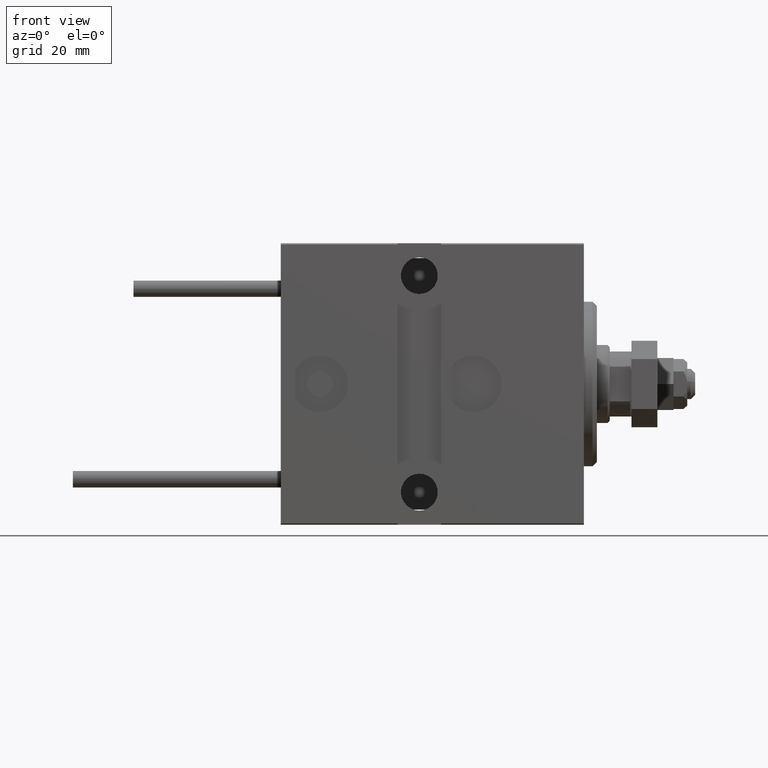
[diagram: clean part render]
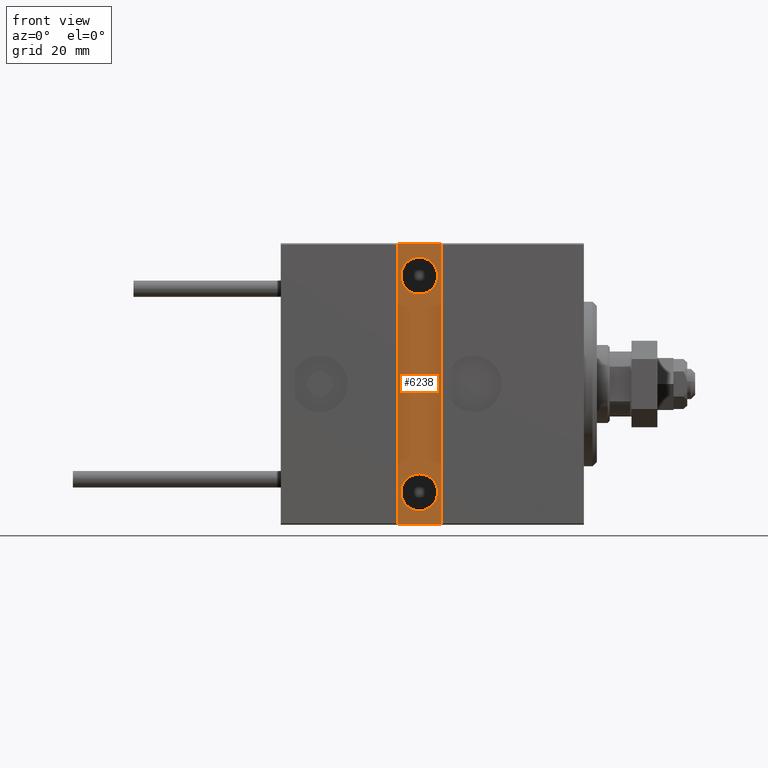
[diagram: same view with one face highlighted and labeled with its STEP entity id]
A machine part, front view. The second image highlights one B-rep face of the part: STEP entity #6238.
In plain terms, the highlighted planar face has unit normal (0, 1, 0).
Its self-contained STEP definition (entity closure, byte-faithful):
#205 = ORIENTED_EDGE ( 'NONE', *, *, #43063, .T. ) ;
#793 = EDGE_CURVE ( 'NONE', #45301, #20154, #11176, .T. ) ;
#1697 = EDGE_LOOP ( 'NONE', ( #13422, #31491, #46224, #20298 ) ) ;
#1749 = DIRECTION ( 'NONE',  ( 0.000000000000000000, 0.000000000000000000, -1.000000000000000000 ) ) ;
#1759 = CIRCLE ( 'NONE', #4196, 4.249999999999996447 ) ;
#1945 = DIRECTION ( 'NONE',  ( 0.000000000000000000, 0.000000000000000000, -1.000000000000000000 ) ) ;
#3084 = CARTESIAN_POINT ( 'NONE',  ( 43.00000000000000711, 20.49999999999999645, 32.49999999999995737 ) ) ;
#4196 = AXIS2_PLACEMENT_3D ( 'NONE', #20677, #35960, #5906 ) ;
#5667 = VECTOR ( 'NONE', #12074, 1000.000000000000000 ) ;
#5906 = DIRECTION ( 'NONE',  ( 0.000000000000000000, 0.000000000000000000, -1.000000000000000000 ) ) ;
#6238 = ADVANCED_FACE ( 'NONE', ( #14465, #25001, #21747 ), #13723, .F. ) ;
#7312 = CARTESIAN_POINT ( 'NONE',  ( 38.00000000000001421, 20.49999999999999645, 25.00000000000000000 ) ) ;
#7488 = EDGE_CURVE ( 'NONE', #22580, #39453, #39118, .T. ) ;
#7648 = VERTEX_POINT ( 'NONE', #42274 ) ;
#8048 = DIRECTION ( 'NONE',  ( 0.000000000000000000, -1.000000000000000000, 0.000000000000000000 ) ) ;
#9458 = CARTESIAN_POINT ( 'NONE',  ( 38.00000000000001421, 20.49999999999999645, -25.00000000000000000 ) ) ;
#9509 = DIRECTION ( 'NONE',  ( 0.000000000000000000, -1.000000000000000000, 0.000000000000000000 ) ) ;
#10315 = ORIENTED_EDGE ( 'NONE', *, *, #793, .T. ) ;
#10940 = EDGE_CURVE ( 'NONE', #20154, #45301, #1759, .T. ) ;
#11176 = CIRCLE ( 'NONE', #34397, 4.249999999999996447 ) ;
#12074 = DIRECTION ( 'NONE',  ( -1.000000000000000000, 0.000000000000000000, 0.000000000000000000 ) ) ;
#13422 = ORIENTED_EDGE ( 'NONE', *, *, #28496, .T. ) ;
#13723 = PLANE ( 'NONE',  #44840 ) ;
#14465 = FACE_BOUND ( 'NONE', #21715, .T. ) ;
#14694 = VECTOR ( 'NONE', #18638, 1000.000000000000000 ) ;
#15070 = DIRECTION ( 'NONE',  ( 0.000000000000000000, 0.000000000000000000, -1.000000000000000000 ) ) ;
#17751 = VERTEX_POINT ( 'NONE', #40695 ) ;
#18638 = DIRECTION ( 'NONE',  ( 1.000000000000000000, -0.000000000000000000, -0.000000000000000000 ) ) ;
#18782 = CIRCLE ( 'NONE', #46786, 4.249999999999996447 ) ;
#19249 = CARTESIAN_POINT ( 'NONE',  ( 43.00000000000000711, 20.50000000000000000, -32.50000000000000000 ) ) ;
#19418 = LINE ( 'NONE', #37988, #44093 ) ;
#20154 = VERTEX_POINT ( 'NONE', #27608 ) ;
#20298 = ORIENTED_EDGE ( 'NONE', *, *, #7488, .T. ) ;
#20677 = CARTESIAN_POINT ( 'NONE',  ( 38.00000000000001421, 20.49999999999999645, 25.00000000000000000 ) ) ;
#20720 = ORIENTED_EDGE ( 'NONE', *, *, #24304, .T. ) ;
#21715 = EDGE_LOOP ( 'NONE', ( #10315, #44740 ) ) ;
#21747 = FACE_OUTER_BOUND ( 'NONE', #1697, .T. ) ;
#22413 = CARTESIAN_POINT ( 'NONE',  ( 33.00000000000000711, 20.49999999999999645, -32.50000000000000000 ) ) ;
#22580 = VERTEX_POINT ( 'NONE', #19249 ) ;
#24029 = VERTEX_POINT ( 'NONE', #28682 ) ;
#24071 = CARTESIAN_POINT ( 'NONE',  ( 38.00000000000001421, 20.49999999999999645, -25.00000000000000000 ) ) ;
#24304 = EDGE_CURVE ( 'NONE', #36510, #17751, #25472, .T. ) ;
#24746 = DIRECTION ( 'NONE',  ( 0.000000000000000000, -1.000000000000000000, 0.000000000000000000 ) ) ;
#25001 = FACE_BOUND ( 'NONE', #46781, .T. ) ;
#25472 = CIRCLE ( 'NONE', #34263, 4.249999999999996447 ) ;
#27608 = CARTESIAN_POINT ( 'NONE',  ( 38.00000000000001421, 20.49999999999999645, 20.75000000000000355 ) ) ;
#28496 = EDGE_CURVE ( 'NONE', #39453, #7648, #40964, .T. ) ;
#28682 = CARTESIAN_POINT ( 'NONE',  ( 43.00000000000000711, 20.49999999999999645, 32.49999999999995737 ) ) ;
#29016 = CARTESIAN_POINT ( 'NONE',  ( 0.000000000000000000, 20.49999999999999645, 0.000000000000000000 ) ) ;
#29652 = CARTESIAN_POINT ( 'NONE',  ( 38.00000000000001421, 20.49999999999999645, -29.25000000000000000 ) ) ;
#30147 = LINE ( 'NONE', #3084, #14694 ) ;
#31364 = CARTESIAN_POINT ( 'NONE',  ( 43.00000000000000000, 20.49999999999999645, -32.50000000000000000 ) ) ;
#31491 = ORIENTED_EDGE ( 'NONE', *, *, #40025, .T. ) ;
#34263 = AXIS2_PLACEMENT_3D ( 'NONE', #24071, #9509, #1749 ) ;
#34397 = AXIS2_PLACEMENT_3D ( 'NONE', #7312, #8048, #15070 ) ;
#34584 = EDGE_CURVE ( 'NONE', #24029, #22580, #19418, .T. ) ;
#34707 = DIRECTION ( 'NONE',  ( -1.067522139062651164E-16, -0.000000000000000000, -1.000000000000000000 ) ) ;
#35960 = DIRECTION ( 'NONE',  ( 0.000000000000000000, -1.000000000000000000, 0.000000000000000000 ) ) ;
#36510 = VERTEX_POINT ( 'NONE', #29652 ) ;
#36777 = DIRECTION ( 'NONE',  ( 0.000000000000000000, -0.000000000000000000, -1.000000000000000000 ) ) ;
#37035 = DIRECTION ( 'NONE',  ( 0.000000000000000000, -1.000000000000000000, 0.000000000000000000 ) ) ;
#37988 = CARTESIAN_POINT ( 'NONE',  ( 43.00000000000000000, 20.49999999999999645, -32.50000000000000000 ) ) ;
#38340 = CARTESIAN_POINT ( 'NONE',  ( 33.00000000000000711, 20.49999999999999645, -32.50000000000000000 ) ) ;
#39118 = LINE ( 'NONE', #31364, #5667 ) ;
#39453 = VERTEX_POINT ( 'NONE', #38340 ) ;
#40025 = EDGE_CURVE ( 'NONE', #7648, #24029, #30147, .T. ) ;
#40695 = CARTESIAN_POINT ( 'NONE',  ( 38.00000000000001421, 20.49999999999999645, -20.75000000000000355 ) ) ;
#40738 = CARTESIAN_POINT ( 'NONE',  ( 38.00000000000001421, 20.49999999999999645, 29.25000000000000000 ) ) ;
#40964 = LINE ( 'NONE', #22413, #46439 ) ;
#42274 = CARTESIAN_POINT ( 'NONE',  ( 33.00000000000001421, 20.49999999999999645, 32.49999999999995737 ) ) ;
#43063 = EDGE_CURVE ( 'NONE', #17751, #36510, #18782, .T. ) ;
#44093 = VECTOR ( 'NONE', #34707, 1000.000000000000000 ) ;
#44740 = ORIENTED_EDGE ( 'NONE', *, *, #10940, .T. ) ;
#44840 = AXIS2_PLACEMENT_3D ( 'NONE', #29016, #37035, #36777 ) ;
#44981 = DIRECTION ( 'NONE',  ( 1.067522139062651164E-16, 0.000000000000000000, 1.000000000000000000 ) ) ;
#45301 = VERTEX_POINT ( 'NONE', #40738 ) ;
#46224 = ORIENTED_EDGE ( 'NONE', *, *, #34584, .T. ) ;
#46439 = VECTOR ( 'NONE', #44981, 1000.000000000000000 ) ;
#46781 = EDGE_LOOP ( 'NONE', ( #205, #20720 ) ) ;
#46786 = AXIS2_PLACEMENT_3D ( 'NONE', #9458, #24746, #1945 ) ;